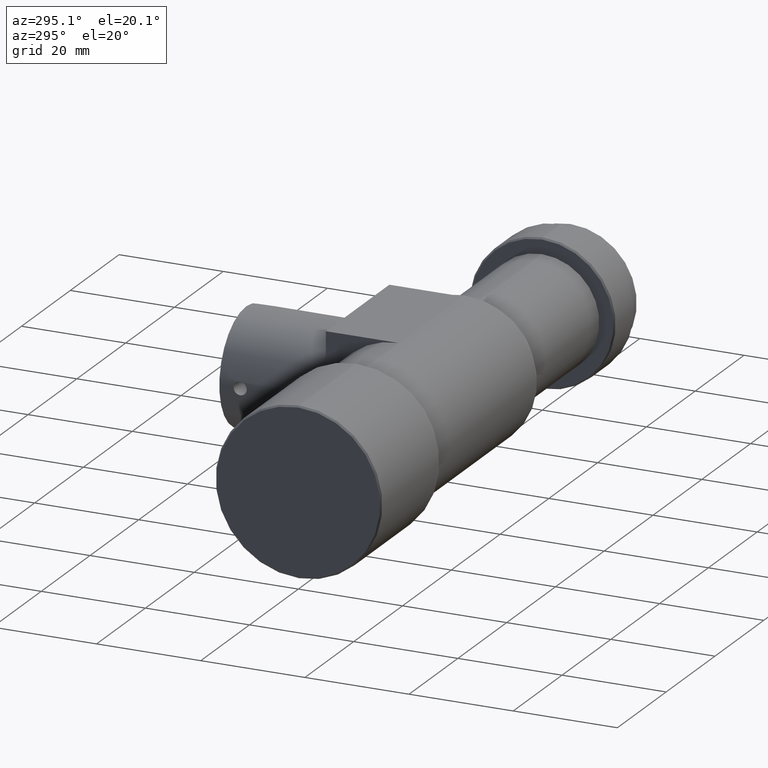
[diagram: clean part render]
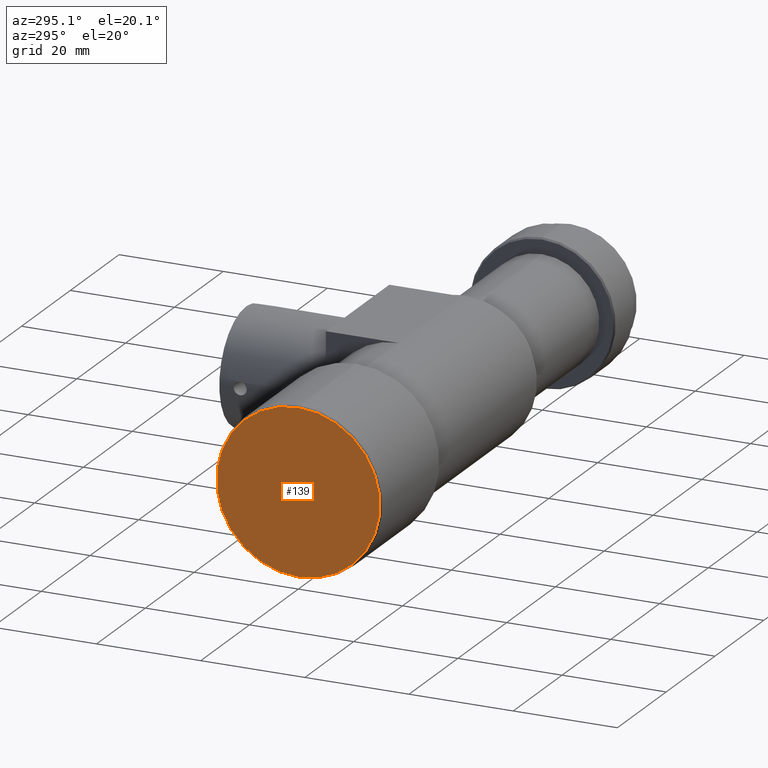
[diagram: same view with one face highlighted and labeled with its STEP entity id]
A machine part, auxiliary view. The second image highlights one B-rep face of the part: STEP entity #139.
In plain terms, the highlighted planar face has unit normal (1, 0, 0).
Its self-contained STEP definition (entity closure, byte-faithful):
#56 = AXIS2_PLACEMENT_3D ( 'NONE', #1866, #694, #1860 ) ;
#139 = ADVANCED_FACE ( 'NONE', ( #801 ), #535, .F. ) ;
#212 = CIRCLE ( 'NONE', #974, 15.70000000000004700 ) ;
#237 = CARTESIAN_POINT ( 'NONE',  ( 0.0000000000000000000, 0.0000000000000000000, 0.0000000000000000000 ) ) ;
#320 = CIRCLE ( 'NONE', #56, 15.70000000000004700 ) ;
#329 = EDGE_CURVE ( 'NONE', #337, #758, #320, .T. ) ;
#337 = VERTEX_POINT ( 'NONE', #846 ) ;
#378 = CARTESIAN_POINT ( 'NONE',  ( 0.0000000000000000000, 0.0000000000000000000, 0.0000000000000000000 ) ) ;
#535 = PLANE ( 'NONE',  #1649 ) ;
#667 = DIRECTION ( 'NONE',  ( 1.000000000000000000, 0.0000000000000000000, 0.0000000000000000000 ) ) ;
#694 = DIRECTION ( 'NONE',  ( -1.000000000000000000, -0.0000000000000000000, -0.0000000000000000000 ) ) ;
#758 = VERTEX_POINT ( 'NONE', #1323 ) ;
#801 = FACE_OUTER_BOUND ( 'NONE', #1121, .T. ) ;
#846 = CARTESIAN_POINT ( 'NONE',  ( 0.0000000000000000000, 0.0000000000000000000, -15.70000000000004700 ) ) ;
#974 = AXIS2_PLACEMENT_3D ( 'NONE', #237, #1104, #1244 ) ;
#1104 = DIRECTION ( 'NONE',  ( -1.000000000000000000, -0.0000000000000000000, -0.0000000000000000000 ) ) ;
#1121 = EDGE_LOOP ( 'NONE', ( #1785, #1316 ) ) ;
#1156 = EDGE_CURVE ( 'NONE', #758, #337, #212, .T. ) ;
#1244 = DIRECTION ( 'NONE',  ( 0.0000000000000000000, 0.0000000000000000000, -1.000000000000000000 ) ) ;
#1316 = ORIENTED_EDGE ( 'NONE', *, *, #1156, .T. ) ;
#1323 = CARTESIAN_POINT ( 'NONE',  ( 0.0000000000000000000, 1.941065176648557500E-015, 15.70000000000004700 ) ) ;
#1382 = DIRECTION ( 'NONE',  ( 0.0000000000000000000, 0.0000000000000000000, -1.000000000000000000 ) ) ;
#1649 = AXIS2_PLACEMENT_3D ( 'NONE', #378, #667, #1382 ) ;
#1785 = ORIENTED_EDGE ( 'NONE', *, *, #329, .T. ) ;
#1860 = DIRECTION ( 'NONE',  ( 0.0000000000000000000, 0.0000000000000000000, -1.000000000000000000 ) ) ;
#1866 = CARTESIAN_POINT ( 'NONE',  ( 0.0000000000000000000, 0.0000000000000000000, 0.0000000000000000000 ) ) ;